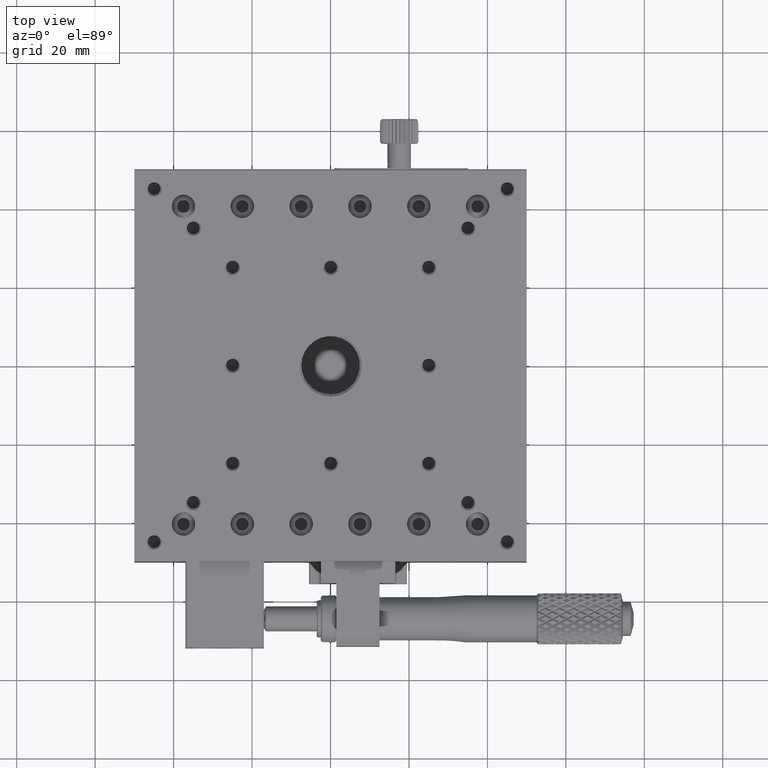
[diagram: clean part render]
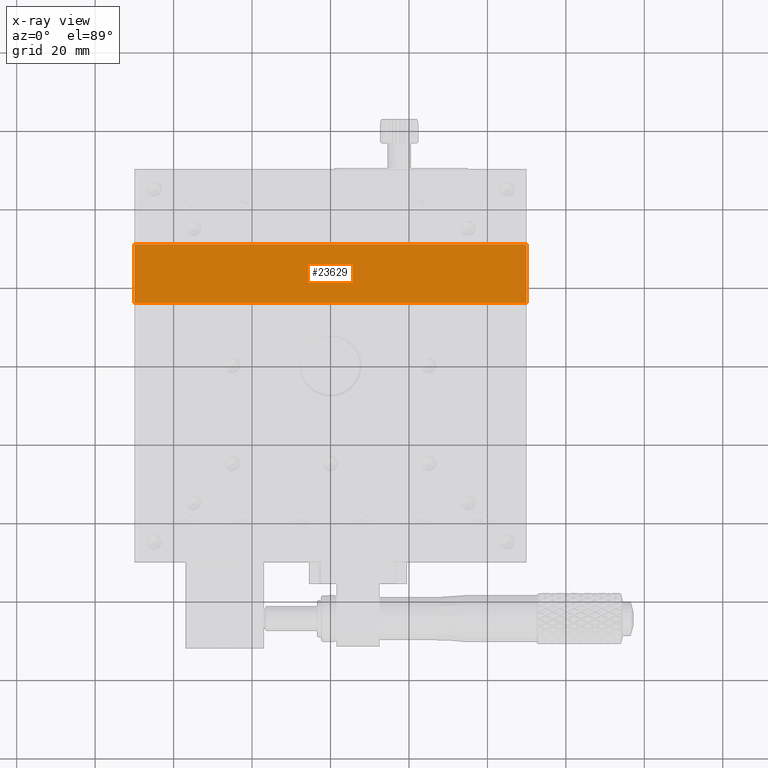
[diagram: x-ray — body ghosted, one internal face saturated and labeled with its STEP entity id]
A machine part, top view, then the same camera in x-ray: the body is ghosted and one INTERNAL B-rep face — a face not visible from any outside direction — is saturated and labeled: STEP entity #23629.
In plain terms, the highlighted planar face has unit normal (0, 0, -1).
Its self-contained STEP definition (entity closure, byte-faithful):
#1175 = DIRECTION ( 'NONE',  ( -1.000000000000000000, -0.000000000000000000, -0.000000000000000000 ) ) ;
#1550 = DIRECTION ( 'NONE',  ( 0.000000000000000000, 1.000000000000000000, 0.000000000000000000 ) ) ;
#1772 = CARTESIAN_POINT ( 'NONE',  ( -50.00000000000000000, 16.00000000000000000, 12.00000000000001954 ) ) ;
#4119 = VERTEX_POINT ( 'NONE', #20951 ) ;
#9459 = EDGE_CURVE ( 'NONE', #11169, #31681, #20789, .T. ) ;
#11169 = VERTEX_POINT ( 'NONE', #39254 ) ;
#15518 = DIRECTION ( 'NONE',  ( 0.000000000000000000, 1.000000000000000000, 0.000000000000000000 ) ) ;
#19940 = VECTOR ( 'NONE', #1550, 1000.000000000000000 ) ;
#20439 = EDGE_CURVE ( 'NONE', #31681, #4119, #58613, .T. ) ;
#20789 = LINE ( 'NONE', #64030, #19940 ) ;
#20951 = CARTESIAN_POINT ( 'NONE',  ( -50.00000000000000000, 31.00000000000000355, 12.00000000000001954 ) ) ;
#21633 = CARTESIAN_POINT ( 'NONE',  ( 50.00000000000000000, 31.00000000000000355, 12.00000000000001954 ) ) ;
#21895 = CARTESIAN_POINT ( 'NONE',  ( 50.00000000000000000, 31.00000000000000355, 12.00000000000001954 ) ) ;
#22031 = DIRECTION ( 'NONE',  ( 0.000000000000000000, 0.000000000000000000, -1.000000000000000000 ) ) ;
#23629 = ADVANCED_FACE ( 'NONE', ( #27361 ), #71427, .F. ) ;
#23877 = VECTOR ( 'NONE', #59418, 1000.000000000000000 ) ;
#24717 = ORIENTED_EDGE ( 'NONE', *, *, #9459, .T. ) ;
#26290 = DIRECTION ( 'NONE',  ( 0.000000000000000000, 1.000000000000000000, 0.000000000000000000 ) ) ;
#27361 = FACE_OUTER_BOUND ( 'NONE', #32551, .T. ) ;
#31681 = VERTEX_POINT ( 'NONE', #59646 ) ;
#32551 = EDGE_LOOP ( 'NONE', ( #74144, #24717, #60623, #61741 ) ) ;
#39254 = CARTESIAN_POINT ( 'NONE',  ( 50.00000000000000000, 16.00000000000000000, 12.00000000000001954 ) ) ;
#42079 = VECTOR ( 'NONE', #26290, 1000.000000000000000 ) ;
#49233 = EDGE_CURVE ( 'NONE', #11169, #50357, #56317, .T. ) ;
#50357 = VERTEX_POINT ( 'NONE', #1772 ) ;
#51039 = VECTOR ( 'NONE', #1175, 1000.000000000000000 ) ;
#51174 = CARTESIAN_POINT ( 'NONE',  ( -50.00000000000000000, 50.00000000000000000, 12.00000000000001954 ) ) ;
#56317 = LINE ( 'NONE', #62047, #51039 ) ;
#57689 = LINE ( 'NONE', #51174, #42079 ) ;
#58613 = LINE ( 'NONE', #21895, #23877 ) ;
#58647 = EDGE_CURVE ( 'NONE', #50357, #4119, #57689, .T. ) ;
#59418 = DIRECTION ( 'NONE',  ( -1.000000000000000000, 0.000000000000000000, -0.000000000000000000 ) ) ;
#59646 = CARTESIAN_POINT ( 'NONE',  ( 50.00000000000000000, 31.00000000000000355, 12.00000000000001954 ) ) ;
#60623 = ORIENTED_EDGE ( 'NONE', *, *, #20439, .T. ) ;
#61741 = ORIENTED_EDGE ( 'NONE', *, *, #58647, .F. ) ;
#62047 = CARTESIAN_POINT ( 'NONE',  ( 50.00000000000000000, 16.00000000000000000, 12.00000000000001954 ) ) ;
#64030 = CARTESIAN_POINT ( 'NONE',  ( 50.00000000000000000, 50.00000000000000000, 12.00000000000001954 ) ) ;
#71427 = PLANE ( 'NONE',  #79411 ) ;
#74144 = ORIENTED_EDGE ( 'NONE', *, *, #49233, .F. ) ;
#79411 = AXIS2_PLACEMENT_3D ( 'NONE', #21633, #22031, #15518 ) ;